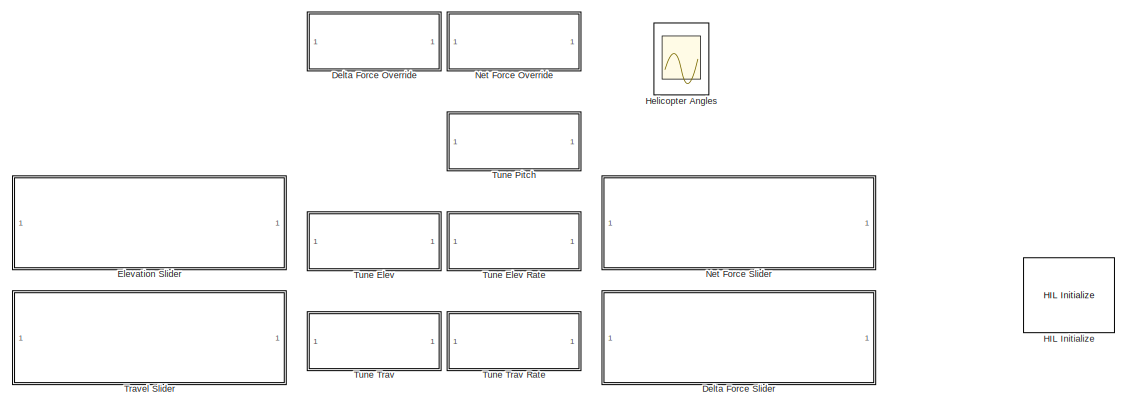
[diagram: root canvas - part 1/2, full width, top band]
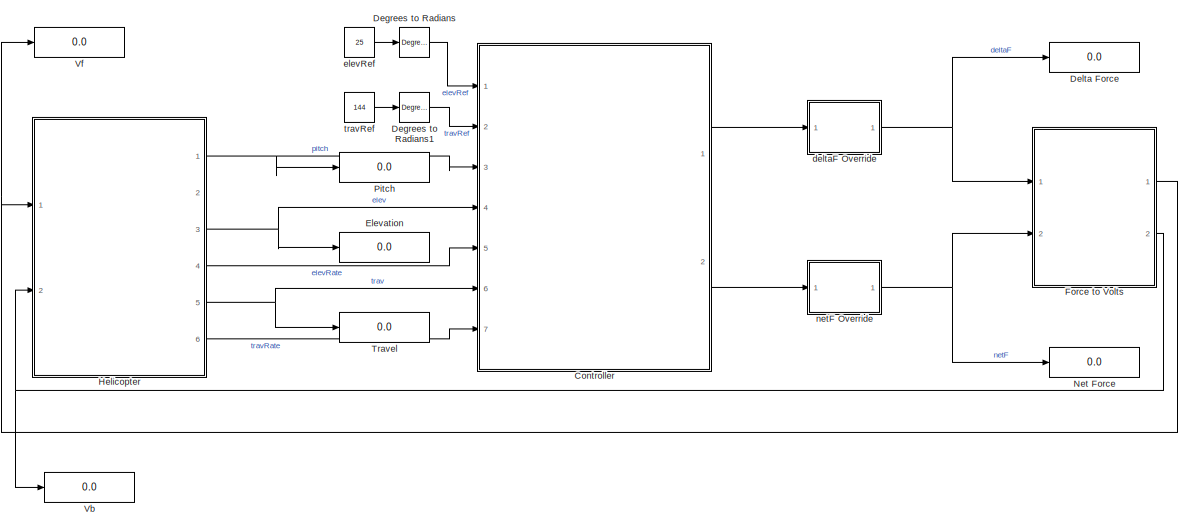
[diagram: root canvas - part 2/2, full width, bottom band]
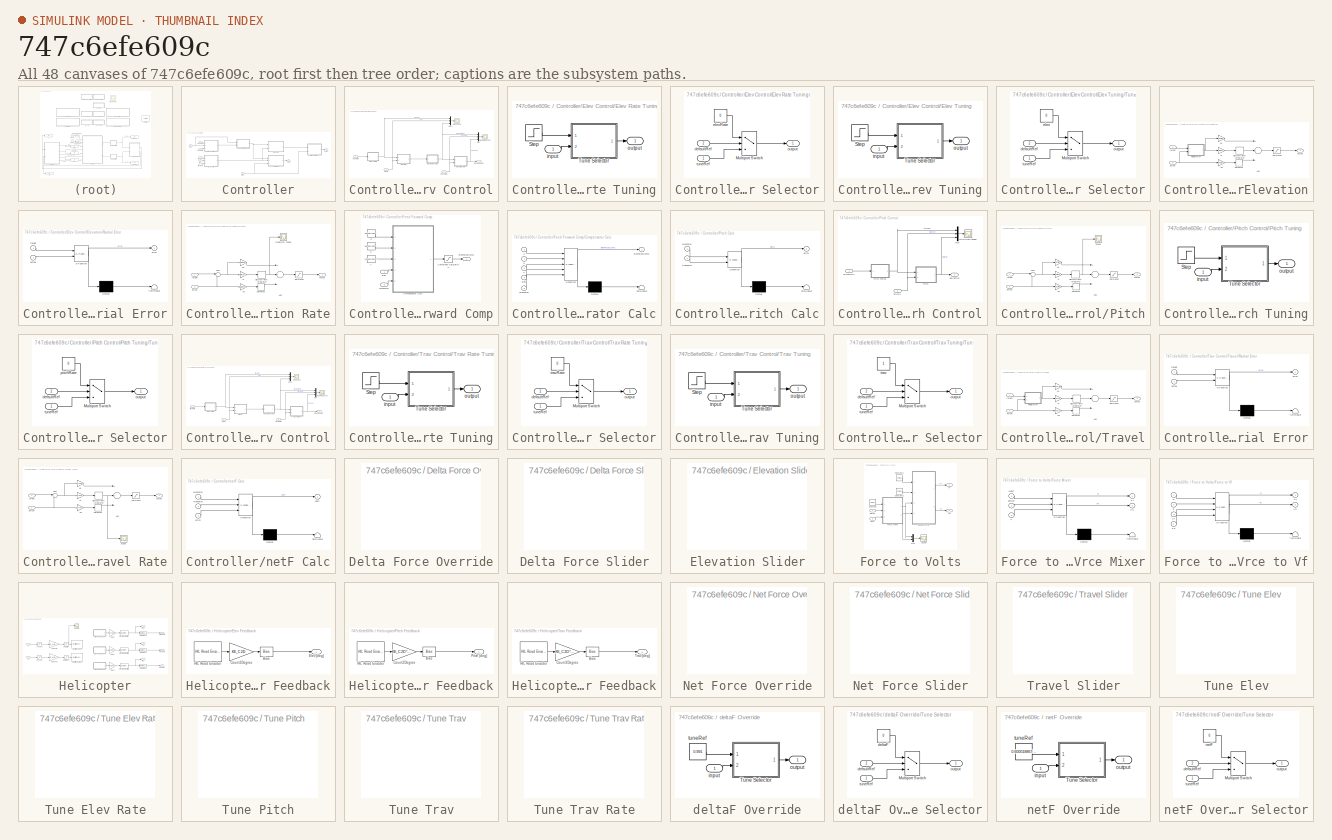
[diagram: thumbnail index - all 48 canvases of the model, root first then tree order]
MODEL slx_747c6efe609c
KIND model
CONFIG AbsTol = auto
CONFIG FixedStep = 0.01
CONFIG MaxStep = auto
CONFIG MinStep = auto
CONFIG RelTol = 1e-3
CONFIG SampleTimeConstraint = Unconstrained
CONFIG Solver = FixedStepAuto
CONFIG SolverMode = Auto
CONFIG SolverName = FixedStepAuto
CONFIG StartTime = 0.0
CONFIG StopTime = 40
BLOCK [SubSystem] Controller
  Ports = [7, 2]
  RequestExecContextInheritance = off
  Variant = off
BLOCK [SubSystem] Controller/Elev Control
  Ports = [3, 1]
  RequestExecContextInheritance = off
  Variant = off
BLOCK [Scope] Controller/Elev Control/Elev Rate Scope
  Ports = [1]
  ScopeSpecificationString = Simulink.scopes.TimeScopeBlockCfg('CurrentConfiguration', extmgr.ConfigurationSet(extmgr.Configuration('Core','General UI',true),extmgr.Configuration('Core','Source UI',true),extmgr.Configuration('Sources','WiredSimulink',true,'DataLoggingVariableName','ScopeData3'),extmgr.Configuration('Visuals','Time Domain',true,'SerializedDisplays',{struct('MinYLimReal','-1.04466','MaxYLimReal','2.3383','YLabe...<+1460ch>
BLOCK [SubSystem] Controller/Elev Control/Elev Rate Tuning
  Ports = [1, 1]
  RequestExecContextInheritance = off
  Variant = off
BLOCK [Step] Controller/Elev Control/Elev Rate Tuning/Step
  After = tuningElevRateRef
  SampleTime = 0
  Time = 2
BLOCK [SubSystem] Controller/Elev Control/Elev Rate Tuning/Tune Selector
  Ports = [2, 1]
  RequestExecContextInheritance = off
  Variant = off
BLOCK [MultiPortSwitch] Controller/Elev Control/Elev Rate Tuning/Tune Selector/Multiport Switch
  DataPortOrder = Zero-based contiguous
  InputSameDT = off
  Inputs = 2
  Ports = [3, 1]
  SaturateOnIntegerOverflow = off
BLOCK [Inport] Controller/Elev Control/Elev Rate Tuning/Tune Selector/defaultRef
  IconDisplay = Port number
  Port = 2
BLOCK [Constant] Controller/Elev Control/Elev Rate Tuning/Tune Selector/elevRate
  Value = 0
BLOCK [Outport] Controller/Elev Control/Elev Rate Tuning/Tune Selector/output 
  IconDisplay = Port number
BLOCK [Inport] Controller/Elev Control/Elev Rate Tuning/Tune Selector/tuneRef
  IconDisplay = Port number
BLOCK [Inport] Controller/Elev Control/Elev Rate Tuning/input
  IconDisplay = Port number
BLOCK [Outport] Controller/Elev Control/Elev Rate Tuning/output
  IconDisplay = Port number
BLOCK [Scope] Controller/Elev Control/Elev Scope
  Ports = [1]
  ScopeSpecificationString = Simulink.scopes.TimeScopeBlockCfg('CurrentConfiguration', extmgr.ConfigurationSet(extmgr.Configuration('Core','General UI',true),extmgr.Configuration('Core','Source UI',true),extmgr.Configuration('Sources','WiredSimulink',true,'DataLoggingVariableName','ScopeData4'),extmgr.Configuration('Visuals','Time Domain',true,'SerializedDisplays',{struct('MinYLimReal','-0.08852','MaxYLimReal','0.52628','YLab...<+1415ch>
BLOCK [SubSystem] Controller/Elev Control/Elev Tuning
  Ports = [1, 1]
  RequestExecContextInheritance = off
  Variant = off
BLOCK [Step] Controller/Elev Control/Elev Tuning/Step
  After = tuningElevRef
  SampleTime = 0
  Time = 2
BLOCK [SubSystem] Controller/Elev Control/Elev Tuning/Tune Selector
  Ports = [2, 1]
  RequestExecContextInheritance = off
  Variant = off
BLOCK [MultiPortSwitch] Controller/Elev Control/Elev Tuning/Tune Selector/Multiport Switch
  DataPortOrder = Zero-based contiguous
  InputSameDT = off
  Inputs = 2
  Ports = [3, 1]
  SaturateOnIntegerOverflow = off
BLOCK [Inport] Controller/Elev Control/Elev Tuning/Tune Selector/defaultRef
  IconDisplay = Port number
  Port = 2
BLOCK [Constant] Controller/Elev Control/Elev Tuning/Tune Selector/elev
  Value = 0
BLOCK [Outport] Controller/Elev Control/Elev Tuning/Tune Selector/output 
  IconDisplay = Port number
BLOCK [Inport] Controller/Elev Control/Elev Tuning/Tune Selector/tuneRef
  IconDisplay = Port number
BLOCK [Inport] Controller/Elev Control/Elev Tuning/input
  IconDisplay = Port number
BLOCK [Outport] Controller/Elev Control/Elev Tuning/output
  IconDisplay = Port number
BLOCK [SubSystem] Controller/Elev Control/Elevation
  Ports = [2, 1]
  RequestExecContextInheritance = off
  Variant = off
BLOCK [SubSystem] Controller/Elev Control/Elevation Rate
  Ports = [2, 1]
  RequestExecContextInheritance = off
  Variant = off
BLOCK [Sum] Controller/Elev Control/Elevation Rate/Add
  InputSameDT = off
  Inputs = ++-
  OutDataTypeStr = Inherit: Inherit via internal rule
  Ports = [3, 1]
  SaturateOnIntegerOverflow = off
BLOCK [Derivative] Controller/Elev Control/Elevation Rate/Derivative
BLOCK [DiscreteIntegrator] Controller/Elev Control/Elevation Rate/Discrete-Time Integrator
  ICPrevOutput = DiscIntNeverNeededParam
  ICPrevScaledInput = DiscIntNeverNeededParam
  InitialConditionSetting = State (most efficient)
  LimitOutput = on
  LowerSaturationLimit = minIntegralElevRate
  Ports = [1, 1]
  SampleTime = -1
  UpperSaturationLimit = maxIntegralElevRate
BLOCK [Scope] Controller/Elev Control/Elevation Rate/Integrator Scope
  Ports = [1]
  ScopeSpecificationString = Simulink.scopes.TimeScopeBlockCfg('CurrentConfiguration', extmgr.ConfigurationSet(extmgr.Configuration('Core','General UI',true),extmgr.Configuration('Core','Source UI',true),extmgr.Configuration('Sources','WiredSimulink',true,'DataLoggingVariableName','ScopeData5'),extmgr.Configuration('Visuals','Time Domain',true,'SerializedDisplays',{struct('MinYLimReal','-0.47751','MaxYLimReal','0.92076','YLab...<+1441ch>
BLOCK [Gain] Controller/Elev Control/Elevation Rate/Kd
  Gain = KdElevRate
  OutDataTypeStr = Inherit: Inherit via internal rule
  ParamDataTypeStr = Inherit: Inherit via internal rule
  SaturateOnIntegerOverflow = off
BLOCK [Gain] Controller/Elev Control/Elevation Rate/Ki
  Gain = KiElevRate
  OutDataTypeStr = Inherit: Inherit via internal rule
  ParamDataTypeStr = Inherit: Inherit via internal rule
  SaturateOnIntegerOverflow = off
BLOCK [Gain] Controller/Elev Control/Elevation Rate/Kp
  Gain = KpElevRate
  OutDataTypeStr = Inherit: Inherit via internal rule
  ParamDataTypeStr = Inherit: Inherit via internal rule
  SaturateOnIntegerOverflow = off
BLOCK [Saturate] Controller/Elev Control/Elevation Rate/Saturation
  InputPortMap = u0
  LowerLimit = minElevForce
  Ports = [1, 1]
  UpperLimit = maxElevForce
BLOCK [Sum] Controller/Elev Control/Elevation Rate/Sum
  IconShape = round
  InputSameDT = off
  Inputs = |+-
  OutDataTypeStr = Inherit: Inherit via internal rule
  Ports = [2, 1]
  SaturateOnIntegerOverflow = off
BLOCK [Inport] Controller/Elev Control/Elevation Rate/actual
  IconDisplay = Port number
  Port = 2
BLOCK [Outport] Controller/Elev Control/Elevation Rate/output
  IconDisplay = Port number
BLOCK [Inport] Controller/Elev Control/Elevation Rate/target
  IconDisplay = Port number
BLOCK [Sum] Controller/Elev Control/Elevation/Add
  InputSameDT = off
  Inputs = ++-
  OutDataTypeStr = Inherit: Inherit via internal rule
  Ports = [3, 1]
  SaturateOnIntegerOverflow = off
BLOCK [Derivative] Controller/Elev Control/Elevation/Derivative
BLOCK [DiscreteIntegrator] Controller/Elev Control/Elevation/Discrete-Time Integrator
  ICPrevOutput = DiscIntNeverNeededParam
  ICPrevScaledInput = DiscIntNeverNeededParam
  InitialConditionSetting = State (most efficient)
  LimitOutput = on
  LowerSaturationLimit = minIntegralElev
  Ports = [1, 1]
  SampleTime = -1
  UpperSaturationLimit = maxIntegralElev
BLOCK [Gain] Controller/Elev Control/Elevation/Kd
  Gain = KdElev
  OutDataTypeStr = Inherit: Inherit via internal rule
  ParamDataTypeStr = Inherit: Inherit via internal rule
  SaturateOnIntegerOverflow = off
BLOCK [Gain] Controller/Elev Control/Elevation/Ki
  Gain = KiElev
  OutDataTypeStr = Inherit: Inherit via internal rule
  ParamDataTypeStr = Inherit: Inherit via internal rule
  SaturateOnIntegerOverflow = off
BLOCK [Gain] Controller/Elev Control/Elevation/Kp
  Gain = KpElev
  OutDataTypeStr = Inherit: Inherit via internal rule
  ParamDataTypeStr = Inherit: Inherit via internal rule
  SaturateOnIntegerOverflow = off
BLOCK [SubSystem] Controller/Elev Control/Elevation/Radial Error
  ErrorFcn = Stateflow.Translate.translate
  PermitHierarchicalResolution = ExplicitOnly
  Ports = [2, 1]
  RequestExecContextInheritance = off
  SFBlockType = MATLAB Function
  TreatAsAtomicUnit = on
  Variant = off
BLOCK [Demux] Controller/Elev Control/Elevation/Radial Error/ Demux 
  Outputs = 1
  Ports = [1, 1]
BLOCK [S-Function] Controller/Elev Control/Elevation/Radial Error/ SFunction 
  EnableBusSupport = on
  FunctionName = sf_sfun
  PortCounts = [2 2]
  Ports = [2, 2]
  SFunctionDeploymentMode = off
  Tag = Stateflow S-Function controller 4
BLOCK [Terminator] Controller/Elev Control/Elevation/Radial Error/ Terminator 
BLOCK [Inport] Controller/Elev Control/Elevation/Radial Error/actual
  IconDisplay = Port number
  Port = 2
BLOCK [Outport] Controller/Elev Control/Elevation/Radial Error/error
  IconDisplay = Port number
BLOCK [Inport] Controller/Elev Control/Elevation/Radial Error/target
  IconDisplay = Port number
BLOCK [Saturate] Controller/Elev Control/Elevation/Saturation
  InputPortMap = u0
  LowerLimit = minElevRate
  Ports = [1, 1]
  UpperLimit = maxElevRate
BLOCK [Inport] Controller/Elev Control/Elevation/actual
  IconDisplay = Port number
  Port = 2
BLOCK [Outport] Controller/Elev Control/Elevation/output
  IconDisplay = Port number
BLOCK [Inport] Controller/Elev Control/Elevation/target
  IconDisplay = Port number
BLOCK [Mux] Controller/Elev Control/Mux
  DisplayOption = bar
  Inputs = 3
  Ports = [3, 1]
BLOCK [Mux] Controller/Elev Control/Mux1
  DisplayOption = bar
  Inputs = 3
  Ports = [3, 1]
BLOCK [Outport] Controller/Elev Control/elevForceOut
  IconDisplay = Port number
BLOCK [Inport] Controller/Elev Control/elevIn
  IconDisplay = Port number
  Port = 2
BLOCK [Inport] Controller/Elev Control/elevRateIn
  IconDisplay = Port number
  Port = 3
BLOCK [Inport] Controller/Elev Control/elevRefIn
  IconDisplay = Port number
BLOCK [SubSystem] Controller/Feed Forward Comp
  Ports = [2, 1]
  RequestExecContextInheritance = off
  Variant = off
BLOCK [Saturate] Controller/Feed Forward Comp/Combined Saturation
  InputPortMap = u0
  LowerLimit = minElevCombForce
  Ports = [1, 1]
  UpperLimit = maxElevCombForce
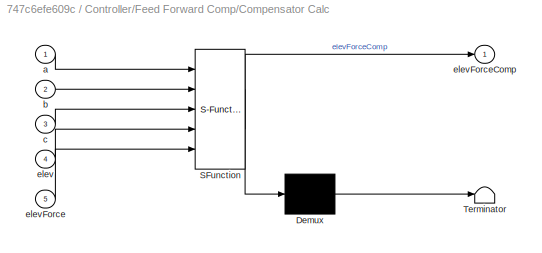
BLOCK [SubSystem] Controller/Feed Forward Comp/Compensator Calc
  ErrorFcn = Stateflow.Translate.translate
  PermitHierarchicalResolution = ExplicitOnly
  Ports = [5, 1]
  RequestExecContextInheritance = off
  SFBlockType = MATLAB Function
  TreatAsAtomicUnit = on
  Variant = off
BLOCK [Demux] Controller/Feed Forward Comp/Compensator Calc/ Demux 
  Outputs = 1
  Ports = [1, 1]
BLOCK [S-Function] Controller/Feed Forward Comp/Compensator Calc/ SFunction 
  EnableBusSupport = on
  FunctionName = sf_sfun
  PortCounts = [5 2]
  Ports = [5, 2]
  SFunctionDeploymentMode = off
  Tag = Stateflow S-Function controller 9
BLOCK [Terminator] Controller/Feed Forward Comp/Compensator Calc/ Terminator 
BLOCK [Inport] Controller/Feed Forward Comp/Compensator Calc/a
  IconDisplay = Port number
BLOCK [Inport] Controller/Feed Forward Comp/Compensator Calc/b
  IconDisplay = Port number
  Port = 2
BLOCK [Inport] Controller/Feed Forward Comp/Compensator Calc/c
  IconDisplay = Port number
  Port = 3
BLOCK [Inport] Controller/Feed Forward Comp/Compensator Calc/elev
  IconDisplay = Port number
  Port = 4
BLOCK [Inport] Controller/Feed Forward Comp/Compensator Calc/elevForce
  IconDisplay = Port number
  Port = 5
BLOCK [Outport] Controller/Feed Forward Comp/Compensator Calc/elevForceComp
  IconDisplay = Port number
BLOCK [Constant] Controller/Feed Forward Comp/a
  Value = aGravityCompensation
BLOCK [Constant] Controller/Feed Forward Comp/b
  Value = bGravityCompensation
BLOCK [Constant] Controller/Feed Forward Comp/c
  Value = cGravityCompensation
BLOCK [Inport] Controller/Feed Forward Comp/elev
  IconDisplay = Port number
BLOCK [Inport] Controller/Feed Forward Comp/elevForce
  IconDisplay = Port number
  Port = 2
BLOCK [Outport] Controller/Feed Forward Comp/elevForceComp
  IconDisplay = Port number
BLOCK [SubSystem] Controller/Pitch Calc
  ErrorFcn = Stateflow.Translate.translate
  PermitHierarchicalResolution = ExplicitOnly
  Ports = [2, 1]
  RequestExecContextInheritance = off
  SFBlockType = MATLAB Function
  TreatAsAtomicUnit = on
  Variant = off
BLOCK [Demux] Controller/Pitch Calc/ Demux 
  Outputs = 1
  Ports = [1, 1]
BLOCK [S-Function] Controller/Pitch Calc/ SFunction 
  EnableBusSupport = on
  FunctionName = sf_sfun
  PortCounts = [2 2]
  Ports = [2, 2]
  SFunctionDeploymentMode = off
  Tag = Stateflow S-Function controller 6
BLOCK [Terminator] Controller/Pitch Calc/ Terminator 
BLOCK [Inport] Controller/Pitch Calc/elevForce
  IconDisplay = Port number
BLOCK [Outport] Controller/Pitch Calc/pitch
  IconDisplay = Port number
BLOCK [Inport] Controller/Pitch Calc/travForce
  IconDisplay = Port number
  Port = 2
BLOCK [SubSystem] Controller/Pitch Control
  Ports = [2, 1]
  RequestExecContextInheritance = off
  Variant = off
BLOCK [Mux] Controller/Pitch Control/Mux
  DisplayOption = bar
  Inputs = 3
  Ports = [3, 1]
BLOCK [SubSystem] Controller/Pitch Control/Pitch
  Ports = [2, 1]
  RequestExecContextInheritance = off
  Variant = off
BLOCK [Scope] Controller/Pitch Control/Pitch Rate Scope
  Ports = [1]
  ScopeSpecificationString = Simulink.scopes.TimeScopeBlockCfg('CurrentConfiguration', extmgr.ConfigurationSet(extmgr.Configuration('Core','General UI',true),extmgr.Configuration('Core','Source UI',true),extmgr.Configuration('Sources','WiredSimulink',true,'DataLoggingVariableName','ScopeData1'),extmgr.Configuration('Visuals','Time Domain',true,'SerializedDisplays',{struct('MinYLimReal','-1.309','MaxYLimReal','1.309','YLabelRe...<+1407ch>
BLOCK [SubSystem] Controller/Pitch Control/Pitch Tuning
  Ports = [1, 1]
  RequestExecContextInheritance = off
  Variant = off
BLOCK [Step] Controller/Pitch Control/Pitch Tuning/Step
  After = tuningPitchRef
  SampleTime = 0
  Time = 2
BLOCK [SubSystem] Controller/Pitch Control/Pitch Tuning/Tune Selector
  Ports = [2, 1]
  RequestExecContextInheritance = off
  Variant = off
BLOCK [MultiPortSwitch] Controller/Pitch Control/Pitch Tuning/Tune Selector/Multiport Switch
  DataPortOrder = Zero-based contiguous
  InputSameDT = off
  Inputs = 2
  Ports = [3, 1]
  SaturateOnIntegerOverflow = off
BLOCK [Inport] Controller/Pitch Control/Pitch Tuning/Tune Selector/defaultRef
  IconDisplay = Port number
  Port = 2
BLOCK [Outport] Controller/Pitch Control/Pitch Tuning/Tune Selector/output 
  IconDisplay = Port number
BLOCK [Constant] Controller/Pitch Control/Pitch Tuning/Tune Selector/pitchRate
  Value = 0
BLOCK [Inport] Controller/Pitch Control/Pitch Tuning/Tune Selector/tuneRef
  IconDisplay = Port number
BLOCK [Inport] Controller/Pitch Control/Pitch Tuning/input
  IconDisplay = Port number
BLOCK [Outport] Controller/Pitch Control/Pitch Tuning/output
  IconDisplay = Port number
BLOCK [Sum] Controller/Pitch Control/Pitch/Add
  InputSameDT = off
  Inputs = ++-
  OutDataTypeStr = Inherit: Inherit via internal rule
  Ports = [3, 1]
  SaturateOnIntegerOverflow = off
BLOCK [Derivative] Controller/Pitch Control/Pitch/Derivative
BLOCK [DiscreteIntegrator] Controller/Pitch Control/Pitch/Discrete-Time Integrator
  ICPrevOutput = DiscIntNeverNeededParam
  ICPrevScaledInput = DiscIntNeverNeededParam
  InitialConditionSetting = State (most efficient)
  LimitOutput = on
  LowerSaturationLimit = minIntegralPitch
  Ports = [1, 1]
  SampleTime = -1
  UpperSaturationLimit = maxIntegralPitch
BLOCK [Gain] Controller/Pitch Control/Pitch/Kd
  Gain = KdPitch
  OutDataTypeStr = Inherit: Inherit via internal rule
  ParamDataTypeStr = Inherit: Inherit via internal rule
  SaturateOnIntegerOverflow = off
BLOCK [Gain] Controller/Pitch Control/Pitch/Ki
  Gain = KiPitch
  OutDataTypeStr = Inherit: Inherit via internal rule
  ParamDataTypeStr = Inherit: Inherit via internal rule
  SaturateOnIntegerOverflow = off
BLOCK [Gain] Controller/Pitch Control/Pitch/Kp
  Gain = KpPitch
  OutDataTypeStr = Inherit: Inherit via internal rule
  ParamDataTypeStr = Inherit: Inherit via internal rule
  SaturateOnIntegerOverflow = off
BLOCK [Saturate] Controller/Pitch Control/Pitch/Saturation
  InputPortMap = u0
  LowerLimit = minDeltaForce
  Ports = [1, 1]
  UpperLimit = maxDeltaForce
BLOCK [Scope] Controller/Pitch Control/Pitch/Scope
  Ports = [1]
  ScopeSpecificationString = Simulink.scopes.TimeScopeBlockCfg('CurrentConfiguration', extmgr.ConfigurationSet(extmgr.Configuration('Core','General UI',true),extmgr.Configuration('Core','Source UI',true),extmgr.Configuration('Sources','WiredSimulink',true,'DataLoggingVariableName','ScopeData2'),extmgr.Configuration('Visuals','Time Domain',true,'SerializedDisplays',{struct('MinYLimReal','-0.05916','MaxYLimReal','0.00667','YLab...<+1410ch>
BLOCK [Sum] Controller/Pitch Control/Pitch/Sum
  IconShape = round
  InputSameDT = off
  Inputs = |+-
  OutDataTypeStr = Inherit: Inherit via internal rule
  Ports = [2, 1]
  SaturateOnIntegerOverflow = off
BLOCK [Inport] Controller/Pitch Control/Pitch/actual
  IconDisplay = Port number
  Port = 2
BLOCK [Outport] Controller/Pitch Control/Pitch/output
  IconDisplay = Port number
BLOCK [Inport] Controller/Pitch Control/Pitch/target
  IconDisplay = Port number
BLOCK [Outport] Controller/Pitch Control/deltaFOut
  IconDisplay = Port number
BLOCK [Inport] Controller/Pitch Control/pitchIn
  IconDisplay = Port number
  Port = 2
BLOCK [Inport] Controller/Pitch Control/pitchRefIn
  IconDisplay = Port number
BLOCK [SubSystem] Controller/Trav Control
  Ports = [3, 1]
  RequestExecContextInheritance = off
  Variant = off
BLOCK [Mux] Controller/Trav Control/Mux
  DisplayOption = bar
  Inputs = 3
  Ports = [3, 1]
BLOCK [Mux] Controller/Trav Control/Mux1
  DisplayOption = bar
  Inputs = 3
  Ports = [3, 1]
BLOCK [Scope] Controller/Trav Control/Trav Rate Scope
  Ports = [1]
  ScopeSpecificationString = Simulink.scopes.TimeScopeBlockCfg('CurrentConfiguration', extmgr.ConfigurationSet(extmgr.Configuration('Core','General UI',true),extmgr.Configuration('Core','Source UI',true),extmgr.Configuration('Sources','WiredSimulink',true,'DataLoggingVariableName','ScopeData1'),extmgr.Configuration('Visuals','Time Domain',true,'SerializedDisplays',{struct('MinYLimReal','-0.48054','MaxYLimReal','0.77787','YLab...<+1464ch>
BLOCK [SubSystem] Controller/Trav Control/Trav Rate Tuning
  Ports = [1, 1]
  RequestExecContextInheritance = off
  Variant = off
BLOCK [Step] Controller/Trav Control/Trav Rate Tuning/Step
  After = tuningTravRateRef
  SampleTime = 0
  Time = 10
BLOCK [SubSystem] Controller/Trav Control/Trav Rate Tuning/Tune Selector
  Ports = [2, 1]
  RequestExecContextInheritance = off
  Variant = off
BLOCK [MultiPortSwitch] Controller/Trav Control/Trav Rate Tuning/Tune Selector/Multiport Switch
  DataPortOrder = Zero-based contiguous
  InputSameDT = off
  Inputs = 2
  Ports = [3, 1]
  SaturateOnIntegerOverflow = off
BLOCK [Inport] Controller/Trav Control/Trav Rate Tuning/Tune Selector/defaultRef
  IconDisplay = Port number
  Port = 2
BLOCK [Outport] Controller/Trav Control/Trav Rate Tuning/Tune Selector/output 
  IconDisplay = Port number
BLOCK [Constant] Controller/Trav Control/Trav Rate Tuning/Tune Selector/travRate
  Value = 0
BLOCK [Inport] Controller/Trav Control/Trav Rate Tuning/Tune Selector/tuneRef
  IconDisplay = Port number
BLOCK [Inport] Controller/Trav Control/Trav Rate Tuning/input
  IconDisplay = Port number
BLOCK [Outport] Controller/Trav Control/Trav Rate Tuning/output
  IconDisplay = Port number
BLOCK [Scope] Controller/Trav Control/Trav Scope
  Ports = [1]
  ScopeSpecificationString = Simulink.scopes.TimeScopeBlockCfg('CurrentConfiguration', extmgr.ConfigurationSet(extmgr.Configuration('Core','General UI',true),extmgr.Configuration('Core','Source UI',true),extmgr.Configuration('Sources','WiredSimulink',true,'DataLoggingVariableName','ScopeData2'),extmgr.Configuration('Visuals','Time Domain',true,'SerializedDisplays',{struct('MinYLimReal','-0.82473','MaxYLimReal','1.64056','YLab...<+1458ch>
BLOCK [SubSystem] Controller/Trav Control/Trav Tuning
  Ports = [1, 1]
  RequestExecContextInheritance = off
  Variant = off
BLOCK [Step] Controller/Trav Control/Trav Tuning/Step
  After = tuningTravRef
  SampleTime = 0
  Time = 10
BLOCK [SubSystem] Controller/Trav Control/Trav Tuning/Tune Selector
  Ports = [2, 1]
  RequestExecContextInheritance = off
  Variant = off
BLOCK [MultiPortSwitch] Controller/Trav Control/Trav Tuning/Tune Selector/Multiport Switch
  DataPortOrder = Zero-based contiguous
  InputSameDT = off
  Inputs = 2
  Ports = [3, 1]
  SaturateOnIntegerOverflow = off
BLOCK [Inport] Controller/Trav Control/Trav Tuning/Tune Selector/defaultRef
  IconDisplay = Port number
  Port = 2
BLOCK [Outport] Controller/Trav Control/Trav Tuning/Tune Selector/output 
  IconDisplay = Port number
BLOCK [Constant] Controller/Trav Control/Trav Tuning/Tune Selector/trav
BLOCK [Inport] Controller/Trav Control/Trav Tuning/Tune Selector/tuneRef
  IconDisplay = Port number
BLOCK [Inport] Controller/Trav Control/Trav Tuning/input
  IconDisplay = Port number
BLOCK [Outport] Controller/Trav Control/Trav Tuning/output
  IconDisplay = Port number
BLOCK [SubSystem] Controller/Trav Control/Travel
  Ports = [2, 1]
  RequestExecContextInheritance = off
  Variant = off
BLOCK [SubSystem] Controller/Trav Control/Travel Rate
  Ports = [2, 1]
  RequestExecContextInheritance = off
  Variant = off
BLOCK [Sum] Controller/Trav Control/Travel Rate/Add
  InputSameDT = off
  Inputs = ++-
  OutDataTypeStr = Inherit: Inherit via internal rule
  Ports = [3, 1]
  SaturateOnIntegerOverflow = off
BLOCK [Derivative] Controller/Trav Control/Travel Rate/Derivative
BLOCK [DiscreteIntegrator] Controller/Trav Control/Travel Rate/Discrete-Time Integrator
  ICPrevOutput = DiscIntNeverNeededParam
  ICPrevScaledInput = DiscIntNeverNeededParam
  InitialConditionSetting = State (most efficient)
  LimitOutput = on
  LowerSaturationLimit = minIntegralTravRate
  Ports = [1, 1]
  SampleTime = -1
  UpperSaturationLimit = maxIntegralTravRate
BLOCK [Gain] Controller/Trav Control/Travel Rate/Kd
  Gain = KdTravRate
  OutDataTypeStr = Inherit: Inherit via internal rule
  ParamDataTypeStr = Inherit: Inherit via internal rule
  SaturateOnIntegerOverflow = off
BLOCK [Gain] Controller/Trav Control/Travel Rate/Ki
  Gain = KiTravRate
  OutDataTypeStr = Inherit: Inherit via internal rule
  ParamDataTypeStr = Inherit: Inherit via internal rule
  SaturateOnIntegerOverflow = off
BLOCK [Gain] Controller/Trav Control/Travel Rate/Kp
  Gain = KpTravRate
  OutDataTypeStr = Inherit: Inherit via internal rule
  ParamDataTypeStr = Inherit: Inherit via internal rule
  SaturateOnIntegerOverflow = off
BLOCK [Saturate] Controller/Trav Control/Travel Rate/Saturation
  InputPortMap = u0
  LowerLimit = minTravForce
  Ports = [1, 1]
  UpperLimit = maxTravForce
BLOCK [Scope] Controller/Trav Control/Travel Rate/Scope
  Ports = [1]
  ScopeSpecificationString = Simulink.scopes.TimeScopeBlockCfg('CurrentConfiguration', extmgr.ConfigurationSet(extmgr.Configuration('Core','General UI',true),extmgr.Configuration('Core','Source UI',true),extmgr.Configuration('Sources','WiredSimulink',true,'DataLoggingVariableName','ScopeData1'),extmgr.Configuration('Visuals','Time Domain',true,'SerializedDisplays',{struct('MinYLimReal','-0.00462','MaxYLimReal','0.00066','YLab...<+1412ch>
BLOCK [Sum] Controller/Trav Control/Travel Rate/Sum
  IconShape = round
  InputSameDT = off
  Inputs = |+-
  OutDataTypeStr = Inherit: Inherit via internal rule
  Ports = [2, 1]
  SaturateOnIntegerOverflow = off
BLOCK [Inport] Controller/Trav Control/Travel Rate/actual
  IconDisplay = Port number
  Port = 2
BLOCK [Outport] Controller/Trav Control/Travel Rate/output
  IconDisplay = Port number
BLOCK [Inport] Controller/Trav Control/Travel Rate/target
  IconDisplay = Port number
BLOCK [Sum] Controller/Trav Control/Travel/Add
  InputSameDT = off
  Inputs = ++-
  OutDataTypeStr = Inherit: Inherit via internal rule
  Ports = [3, 1]
  SaturateOnIntegerOverflow = off
BLOCK [Derivative] Controller/Trav Control/Travel/Derivative
BLOCK [DiscreteIntegrator] Controller/Trav Control/Travel/Discrete-Time Integrator
  ICPrevOutput = DiscIntNeverNeededParam
  ICPrevScaledInput = DiscIntNeverNeededParam
  InitialConditionSetting = State (most efficient)
  LimitOutput = on
  LowerSaturationLimit = minIntegralTrav
  Ports = [1, 1]
  SampleTime = -1
  UpperSaturationLimit = maxIntegralTrav
BLOCK [Gain] Controller/Trav Control/Travel/Kd
  Gain = KdTrav
  OutDataTypeStr = Inherit: Inherit via internal rule
  ParamDataTypeStr = Inherit: Inherit via internal rule
  SaturateOnIntegerOverflow = off
BLOCK [Gain] Controller/Trav Control/Travel/Ki
  Gain = KiTrav
  OutDataTypeStr = Inherit: Inherit via internal rule
  ParamDataTypeStr = Inherit: Inherit via internal rule
  SaturateOnIntegerOverflow = off
BLOCK [Gain] Controller/Trav Control/Travel/Kp
  Gain = KpTrav
  OutDataTypeStr = Inherit: Inherit via internal rule
  ParamDataTypeStr = Inherit: Inherit via internal rule
  SaturateOnIntegerOverflow = off
BLOCK [SubSystem] Controller/Trav Control/Travel/Radial Error
  ErrorFcn = Stateflow.Translate.translate
  PermitHierarchicalResolution = ExplicitOnly
  Ports = [2, 1]
  RequestExecContextInheritance = off
  SFBlockType = MATLAB Function
  TreatAsAtomicUnit = on
  Variant = off
BLOCK [Demux] Controller/Trav Control/Travel/Radial Error/ Demux 
  Outputs = 1
  Ports = [1, 1]
BLOCK [S-Function] Controller/Trav Control/Travel/Radial Error/ SFunction 
  EnableBusSupport = on
  FunctionName = sf_sfun
  PortCounts = [2 2]
  Ports = [2, 2]
  SFunctionDeploymentMode = off
  Tag = Stateflow S-Function controller 7
BLOCK [Terminator] Controller/Trav Control/Travel/Radial Error/ Terminator 
BLOCK [Inport] Controller/Trav Control/Travel/Radial Error/actual
  IconDisplay = Port number
  Port = 2
BLOCK [Outport] Controller/Trav Control/Travel/Radial Error/error
  IconDisplay = Port number
BLOCK [Inport] Controller/Trav Control/Travel/Radial Error/target
  IconDisplay = Port number
BLOCK [Saturate] Controller/Trav Control/Travel/Saturation
  InputPortMap = u0
  LowerLimit = minTravRate
  Ports = [1, 1]
  UpperLimit = maxTravRate
BLOCK [Inport] Controller/Trav Control/Travel/actual
  IconDisplay = Port number
  Port = 2
BLOCK [Outport] Controller/Trav Control/Travel/output
  IconDisplay = Port number
BLOCK [Inport] Controller/Trav Control/Travel/target
  IconDisplay = Port number
BLOCK [Outport] Controller/Trav Control/travForceOut
  IconDisplay = Port number
BLOCK [Inport] Controller/Trav Control/travIn
  IconDisplay = Port number
  Port = 2
BLOCK [Inport] Controller/Trav Control/travRateIn
  IconDisplay = Port number
  Port = 3
BLOCK [Inport] Controller/Trav Control/travRefIn
  IconDisplay = Port number
BLOCK [Outport] Controller/deltaF
  IconDisplay = Port number
BLOCK [Inport] Controller/elev
  IconDisplay = Port number
  Port = 4
BLOCK [Inport] Controller/elevRate
  IconDisplay = Port number
  Port = 5
BLOCK [Inport] Controller/elevRef
  IconDisplay = Port number
BLOCK [Outport] Controller/netF
  IconDisplay = Port number
  Port = 2
BLOCK [SubSystem] Controller/netF Calc
  ErrorFcn = Stateflow.Translate.translate
  PermitHierarchicalResolution = ExplicitOnly
  Ports = [3, 1]
  RequestExecContextInheritance = off
  SFBlockType = MATLAB Function
  TreatAsAtomicUnit = on
  Variant = off
BLOCK [Demux] Controller/netF Calc/ Demux 
  Outputs = 1
  Ports = [1, 1]
BLOCK [S-Function] Controller/netF Calc/ SFunction 
  EnableBusSupport = on
  FunctionName = sf_sfun
  PortCounts = [3 2]
  Ports = [3, 2]
  SFunctionDeploymentMode = off
  Tag = Stateflow S-Function controller 5
BLOCK [Terminator] Controller/netF Calc/ Terminator 
BLOCK [Inport] Controller/netF Calc/elevForce
  IconDisplay = Port number
BLOCK [Outport] Controller/netF Calc/netF
  IconDisplay = Port number
BLOCK [Inport] Controller/netF Calc/pitch
  IconDisplay = Port number
  Port = 3
BLOCK [Inport] Controller/netF Calc/travForce
  IconDisplay = Port number
  Port = 2
BLOCK [Inport] Controller/pitch
  IconDisplay = Port number
  Port = 3
BLOCK [Inport] Controller/trav
  IconDisplay = Port number
  Port = 6
BLOCK [Inport] Controller/travRate
  IconDisplay = Port number
  Port = 7
BLOCK [Inport] Controller/travRef
  IconDisplay = Port number
  Port = 2
BLOCK [Reference] Degrees to Radians  REF=simulink_extras/Transformations/Degrees to
Radians
  Ports = [1, 1]
  SourceBlock = simulink_extras/Transformations/Degrees to\nRadians
  SourceType = DegreesToRadians
BLOCK [Reference] Degrees to Radians1  REF=simulink_extras/Transformations/Degrees to
Radians
  Ports = [1, 1]
  SourceBlock = simulink_extras/Transformations/Degrees to\nRadians
  SourceType = DegreesToRadians
BLOCK [Display] Delta Force
  Decimation = 2
  Ports = [1]
BLOCK [SubSystem] Delta Force Override
  DialogController = hmiCreateDDGDialog
  IsWebBlock = on
  MaskHideContents = on
  Ports = []
  RequestExecContextInheritance = off
  Variant = off
BLOCK [SubSystem] Delta Force Slider
  DialogController = hmiCreateDDGDialog
  IsWebBlock = on
  MaskHideContents = on
  Ports = []
  RequestExecContextInheritance = off
  Variant = off
BLOCK [Display] Elevation
  Decimation = 2
  Ports = [1]
BLOCK [SubSystem] Elevation Slider
  DialogController = hmiCreateDDGDialog
  IsWebBlock = on
  MaskHideContents = on
  Ports = []
  RequestExecContextInheritance = off
  Variant = off
BLOCK [SubSystem] Force to Volts
  Ports = [2, 2]
  RequestExecContextInheritance = off
  Variant = off
BLOCK [Constant] Force to Volts/Constant
  Value = maxF
BLOCK [Constant] Force to Volts/Constant1
  Value = aThrust
BLOCK [Constant] Force to Volts/Constant2
  Value = bThrust
BLOCK [SubSystem] Force to Volts/Force Mixer
  ErrorFcn = Stateflow.Translate.translate
  PermitHierarchicalResolution = ExplicitOnly
  Ports = [3, 2]
  RequestExecContextInheritance = off
  SFBlockType = MATLAB Function
  TreatAsAtomicUnit = on
  Variant = off
BLOCK [Demux] Force to Volts/Force Mixer/ Demux 
  Outputs = 1
  Ports = [1, 1]
BLOCK [S-Function] Force to Volts/Force Mixer/ SFunction 
  EnableBusSupport = on
  FunctionName = sf_sfun
  PortCounts = [3 3]
  Ports = [3, 3]
  SFunctionDeploymentMode = off
  Tag = Stateflow S-Function controller 1
BLOCK [Terminator] Force to Volts/Force Mixer/ Terminator 
BLOCK [Inport] Force to Volts/Force Mixer/F
  IconDisplay = Port number
  Port = 3
BLOCK [Outport] Force to Volts/Force Mixer/Fb
  IconDisplay = Port number
  Port = 2
BLOCK [Outport] Force to Volts/Force Mixer/Ff
  IconDisplay = Port number
BLOCK [Inport] Force to Volts/Force Mixer/deltaF
  IconDisplay = Port number
  Port = 2
BLOCK [Inport] Force to Volts/Force Mixer/maxF
  IconDisplay = Port number
BLOCK [SubSystem] Force to Volts/Force to Vf
  ErrorFcn = Stateflow.Translate.translate
  PermitHierarchicalResolution = ExplicitOnly
  Ports = [4, 2]
  RequestExecContextInheritance = off
  SFBlockType = MATLAB Function
  TreatAsAtomicUnit = on
  Variant = off
BLOCK [Demux] Force to Volts/Force to Vf/ Demux 
  Outputs = 1
  Ports = [1, 1]
BLOCK [S-Function] Force to Volts/Force to Vf/ SFunction 
  EnableBusSupport = on
  FunctionName = sf_sfun
  PortCounts = [4 3]
  Ports = [4, 3]
  SFunctionDeploymentMode = off
  Tag = Stateflow S-Function controller 2
BLOCK [Terminator] Force to Volts/Force to Vf/ Terminator 
BLOCK [Inport] Force to Volts/Force to Vf/Fb
  IconDisplay = Port number
  Port = 4
BLOCK [Inport] Force to Volts/Force to Vf/Ff
  IconDisplay = Port number
  Port = 3
BLOCK [Outport] Force to Volts/Force to Vf/Vb
  IconDisplay = Port number
  Port = 2
BLOCK [Outport] Force to Volts/Force to Vf/Vf
  IconDisplay = Port number
BLOCK [Inport] Force to Volts/Force to Vf/a
  IconDisplay = Port number
BLOCK [Inport] Force to Volts/Force to Vf/b
  IconDisplay = Port number
  Port = 2
BLOCK [Mux] Force to Volts/Mux
  DisplayOption = bar
  Inputs = 2
  Ports = [2, 1]
BLOCK [Scope] Force to Volts/Scope
  Ports = [1]
  ScopeSpecificationString = Simulink.scopes.TimeScopeBlockCfg('CurrentConfiguration', extmgr.ConfigurationSet(extmgr.Configuration('Core','General UI',true),extmgr.Configuration('Core','Source UI',true),extmgr.Configuration('Sources','WiredSimulink',true,'DataLoggingVariableName','ScopeData1'),extmgr.Configuration('Visuals','Time Domain',true,'SerializedDisplays',{struct('MinYLimReal','-0.12387','MaxYLimReal','1.11488','YLab...<+1417ch>
BLOCK [Outport] Force to Volts/Vb
  IconDisplay = Port number
  Port = 2
BLOCK [Outport] Force to Volts/Vf
  IconDisplay = Port number
BLOCK [Inport] Force to Volts/deltaF
  IconDisplay = Port number
BLOCK [Inport] Force to Volts/netF
  IconDisplay = Port number
  Port = 2
BLOCK [Reference] HIL Initialize  REF=quarc_library/Data Acquisition/Generic/Configuration/HIL Initialize
  AttributesFormatString = %<object_name> (%<board_type>-%<board_number>)
  Ports = []
  Priority = -99
  SourceBlock = quarc_library/Data Acquisition/Generic/Configuration/HIL Initialize
  SourceType = HIL Initialize
  UserDataPersistent = on
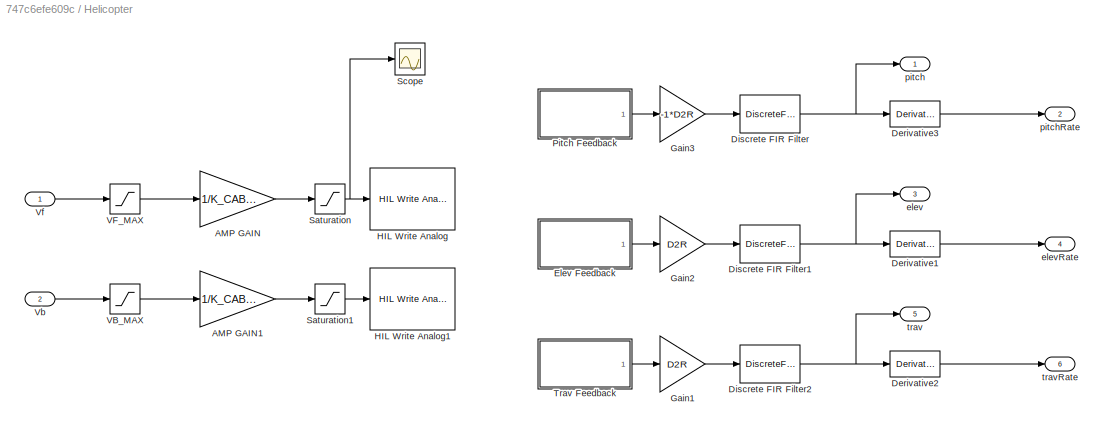
BLOCK [SubSystem] Helicopter
  Ports = [2, 6]
  RequestExecContextInheritance = off
  Variant = off
BLOCK [Scope] Helicopter Angles
  Floating = on
  Ports = []
  ScopeSpecificationString = Simulink.scopes.TimeScopeBlockCfg('CurrentConfiguration', extmgr.ConfigurationSet(extmgr.Configuration('Core','General UI',true),extmgr.Configuration('Core','Source UI',true),extmgr.Configuration('Sources','WiredSimulink',true),extmgr.Configuration('Visuals','Time Domain',true,'SerializedDisplays',{struct('MinYLimReal','-0.14519','MaxYLimReal','0.90218','YLabelReal','','MinYLimMag','0.00000','MaxY...<+1375ch>
BLOCK [Gain] Helicopter/AMP GAIN
  Gain = 1/K_CABLE
  OutDataTypeStr = Inherit: Inherit via internal rule
  ParamDataTypeStr = Inherit: Inherit via internal rule
  SaturateOnIntegerOverflow = off
BLOCK [Gain] Helicopter/AMP GAIN1
  Gain = 1/K_CABLE
  OutDataTypeStr = Inherit: Inherit via internal rule
  ParamDataTypeStr = Inherit: Inherit via internal rule
  SaturateOnIntegerOverflow = off
BLOCK [Derivative] Helicopter/Derivative1
BLOCK [Derivative] Helicopter/Derivative2
BLOCK [Derivative] Helicopter/Derivative3
BLOCK [DiscreteFir] Helicopter/Discrete FIR Filter
  Coefficients = filterCoeffs
  InputPortMap = u0
  OutputPortMap = o0
  Ports = [1, 1]
BLOCK [DiscreteFir] Helicopter/Discrete FIR Filter1
  Coefficients = filterCoeffs
  InputPortMap = u0
  OutputPortMap = o0
  Ports = [1, 1]
BLOCK [DiscreteFir] Helicopter/Discrete FIR Filter2
  Coefficients = filterCoeffs
  InputPortMap = u0
  OutputPortMap = o0
  Ports = [1, 1]
BLOCK [SubSystem] Helicopter/Elev Feedback
  Ports = [0, 1]
  RequestExecContextInheritance = off
  Variant = off
BLOCK [Bias] Helicopter/Elev Feedback/Bias
  SaturateOnIntegerOverflow = off
BLOCK [Gain] Helicopter/Elev Feedback/Count2Degree
  Gain = KE_C2D
  OutDataTypeStr = Inherit: Inherit via internal rule
  ParamDataTypeStr = Inherit: Inherit via internal rule
  SaturateOnIntegerOverflow = off
BLOCK [Outport] Helicopter/Elev Feedback/Elev [deg]
  IconDisplay = Port number
BLOCK [Reference] Helicopter/Elev Feedback/HIL Read Encoder  REF=quarc_library/Data Acquisition/Generic/Immediate I//O/HIL Read Encoder
  AttributesFormatString = (%<object_name>)
  Ports = [0, 1]
  SourceBlock = quarc_library/Data Acquisition/Generic/Immediate I//O/HIL Read Encoder
  SourceType = HIL Read Encoder
  UserDataPersistent = on
BLOCK [Gain] Helicopter/Gain1
  Gain = D2R
  OutDataTypeStr = Inherit: Inherit via internal rule
  ParamDataTypeStr = Inherit: Inherit via internal rule
  SaturateOnIntegerOverflow = off
BLOCK [Gain] Helicopter/Gain2
  Gain = D2R
  OutDataTypeStr = Inherit: Inherit via internal rule
  ParamDataTypeStr = Inherit: Inherit via internal rule
  SaturateOnIntegerOverflow = off
BLOCK [Gain] Helicopter/Gain3
  Gain = -1*D2R
  OutDataTypeStr = Inherit: Inherit via internal rule
  ParamDataTypeStr = Inherit: Inherit via internal rule
  SaturateOnIntegerOverflow = off
BLOCK [Reference] Helicopter/HIL Write Analog  REF=quarc_library/Data Acquisition/Generic/Immediate I//O/HIL Write Analog
  AttributesFormatString = (%<object_name>)
  Ports = [1]
  SourceBlock = quarc_library/Data Acquisition/Generic/Immediate I//O/HIL Write Analog
  SourceType = HIL Write Analog
  UserDataPersistent = on
BLOCK [Reference] Helicopter/HIL Write Analog1  REF=quarc_library/Data Acquisition/Generic/Immediate I//O/HIL Write Analog
  AttributesFormatString = (%<object_name>)
  Ports = [1]
  SourceBlock = quarc_library/Data Acquisition/Generic/Immediate I//O/HIL Write Analog
  SourceType = HIL Write Analog
  UserDataPersistent = on
BLOCK [SubSystem] Helicopter/Pitch Feedback
  Ports = [0, 1]
  RequestExecContextInheritance = off
  Variant = off
BLOCK [Bias] Helicopter/Pitch Feedback/Bias
  SaturateOnIntegerOverflow = off
BLOCK [Gain] Helicopter/Pitch Feedback/Count2Degree
  Gain = KE_C2D*0.5
  OutDataTypeStr = Inherit: Inherit via internal rule
  ParamDataTypeStr = Inherit: Inherit via internal rule
  SaturateOnIntegerOverflow = off
BLOCK [Reference] Helicopter/Pitch Feedback/HIL Read Encoder  REF=quarc_library/Data Acquisition/Generic/Immediate I//O/HIL Read Encoder
  AttributesFormatString = (%<object_name>)
  Ports = [0, 1]
  SourceBlock = quarc_library/Data Acquisition/Generic/Immediate I//O/HIL Read Encoder
  SourceType = HIL Read Encoder
  UserDataPersistent = on
BLOCK [Outport] Helicopter/Pitch Feedback/Pitch [deg]
  IconDisplay = Port number
BLOCK [Saturate] Helicopter/Saturation
  InputPortMap = u0
  LowerLimit = -K_DAQ*0.5
  Ports = [1, 1]
  UpperLimit = K_DAQ*0.5
BLOCK [Saturate] Helicopter/Saturation1
  InputPortMap = u0
  LowerLimit = -K_DAQ*0.5
  Ports = [1, 1]
  UpperLimit = K_DAQ*0.5
BLOCK [Scope] Helicopter/Scope
  Ports = [1]
  ScopeSpecificationString = Simulink.scopes.TimeScopeBlockCfg('CurrentConfiguration', extmgr.ConfigurationSet(extmgr.Configuration('Core','General UI',true),extmgr.Configuration('Core','Source UI',true),extmgr.Configuration('Sources','WiredSimulink',true,'DataLoggingVariableName','ScopeData1'),extmgr.Configuration('Visuals','Time Domain',true,'SerializedDisplays',{struct('MinYLimReal','1.70431','MaxYLimReal','3.20855','YLabe...<+1396ch>
BLOCK [SubSystem] Helicopter/Trav Feedback
  Ports = [0, 1]
  RequestExecContextInheritance = off
  Variant = off
BLOCK [Bias] Helicopter/Trav Feedback/Bias
  SaturateOnIntegerOverflow = off
BLOCK [Gain] Helicopter/Trav Feedback/Count2Degree
  Gain = KE_C2D*0.5
  OutDataTypeStr = Inherit: Inherit via internal rule
  ParamDataTypeStr = Inherit: Inherit via internal rule
  SaturateOnIntegerOverflow = off
BLOCK [Reference] Helicopter/Trav Feedback/HIL Read Encoder  REF=quarc_library/Data Acquisition/Generic/Immediate I//O/HIL Read Encoder
  AttributesFormatString = (%<object_name>)
  Ports = [0, 1]
  SourceBlock = quarc_library/Data Acquisition/Generic/Immediate I//O/HIL Read Encoder
  SourceType = HIL Read Encoder
  UserDataPersistent = on
BLOCK [Outport] Helicopter/Trav Feedback/Trav [deg]
  IconDisplay = Port number
BLOCK [Saturate] Helicopter/VB_MAX
  InputPortMap = u0
  LowerLimit = -VSUM_MAX*0.5
  Ports = [1, 1]
  UpperLimit = VSUM_MAX*0.5
BLOCK [Saturate] Helicopter/VF_MAX
  InputPortMap = u0
  LinearizeAsGain = off
  LowerLimit = -VSUM_MAX*0.5
  Ports = [1, 1]
  UpperLimit = VSUM_MAX*0.5
BLOCK [Inport] Helicopter/Vb
  IconDisplay = Port number
  Port = 2
BLOCK [Inport] Helicopter/Vf
  IconDisplay = Port number
BLOCK [Outport] Helicopter/elev
  IconDisplay = Port number
  Port = 3
BLOCK [Outport] Helicopter/elevRate
  IconDisplay = Port number
  Port = 4
BLOCK [Outport] Helicopter/pitch
  IconDisplay = Port number
BLOCK [Outport] Helicopter/pitchRate
  IconDisplay = Port number
  Port = 2
BLOCK [Outport] Helicopter/trav
  IconDisplay = Port number
  Port = 5
BLOCK [Outport] Helicopter/travRate
  IconDisplay = Port number
  Port = 6
BLOCK [Display] Net Force
  Decimation = 2
  Ports = [1]
BLOCK [SubSystem] Net Force Override
  DialogController = hmiCreateDDGDialog
  IsWebBlock = on
  MaskHideContents = on
  Ports = []
  RequestExecContextInheritance = off
  Variant = off
BLOCK [SubSystem] Net Force Slider
  DialogController = hmiCreateDDGDialog
  IsWebBlock = on
  MaskHideContents = on
  Ports = []
  RequestExecContextInheritance = off
  Variant = off
BLOCK [Display] Pitch
  Decimation = 2
  Ports = [1]
BLOCK [Display] Travel
  Decimation = 2
  Ports = [1]
BLOCK [SubSystem] Travel Slider
  DialogController = hmiCreateDDGDialog
  IsWebBlock = on
  MaskHideContents = on
  Ports = []
  RequestExecContextInheritance = off
  Variant = off
BLOCK [SubSystem] Tune Elev
  DialogController = hmiCreateDDGDialog
  IsWebBlock = on
  MaskHideContents = on
  Ports = []
  RequestExecContextInheritance = off
  Variant = off
BLOCK [SubSystem] Tune Elev Rate
  DialogController = hmiCreateDDGDialog
  IsWebBlock = on
  MaskHideContents = on
  Ports = []
  RequestExecContextInheritance = off
  Variant = off
BLOCK [SubSystem] Tune Pitch
  DialogController = hmiCreateDDGDialog
  IsWebBlock = on
  MaskHideContents = on
  Ports = []
  RequestExecContextInheritance = off
  Variant = off
BLOCK [SubSystem] Tune Trav
  DialogController = hmiCreateDDGDialog
  IsWebBlock = on
  MaskHideContents = on
  Ports = []
  RequestExecContextInheritance = off
  Variant = off
BLOCK [SubSystem] Tune Trav Rate
  DialogController = hmiCreateDDGDialog
  IsWebBlock = on
  MaskHideContents = on
  Ports = []
  RequestExecContextInheritance = off
  Variant = off
BLOCK [Display] Vb
  Decimation = 2
  Ports = [1]
BLOCK [Display] Vf
  Decimation = 2
  Ports = [1]
BLOCK [SubSystem] deltaF Override
  Ports = [1, 1]
  RequestExecContextInheritance = off
  Variant = off
BLOCK [SubSystem] deltaF Override/Tune Selector
  Ports = [2, 1]
  RequestExecContextInheritance = off
  Variant = off
BLOCK [MultiPortSwitch] deltaF Override/Tune Selector/Multiport Switch
  DataPortOrder = Zero-based contiguous
  InputSameDT = off
  Inputs = 2
  Ports = [3, 1]
  SaturateOnIntegerOverflow = off
BLOCK [Inport] deltaF Override/Tune Selector/defaultRef
  IconDisplay = Port number
  Port = 2
BLOCK [Constant] deltaF Override/Tune Selector/deltaF
  Value = 0
BLOCK [Outport] deltaF Override/Tune Selector/output 
  IconDisplay = Port number
BLOCK [Inport] deltaF Override/Tune Selector/tuneRef
  IconDisplay = Port number
BLOCK [Inport] deltaF Override/input
  IconDisplay = Port number
BLOCK [Outport] deltaF Override/output
  IconDisplay = Port number
BLOCK [Constant] deltaF Override/tuneRef
  Value = 0.991
BLOCK [Constant] elevRef
  Value = 25
BLOCK [SubSystem] netF Override
  Ports = [1, 1]
  RequestExecContextInheritance = off
  Variant = off
BLOCK [SubSystem] netF Override/Tune Selector
  Ports = [2, 1]
  RequestExecContextInheritance = off
  Variant = off
BLOCK [MultiPortSwitch] netF Override/Tune Selector/Multiport Switch
  DataPortIndices = {1,2}
  DataPortOrder = Zero-based contiguous
  InputSameDT = off
  Inputs = 2
  Ports = [3, 1]
  SaturateOnIntegerOverflow = off
BLOCK [Inport] netF Override/Tune Selector/defaultRef
  IconDisplay = Port number
  Port = 2
BLOCK [Constant] netF Override/Tune Selector/netF
  Value = 0
BLOCK [Outport] netF Override/Tune Selector/output 
  IconDisplay = Port number
BLOCK [Inport] netF Override/Tune Selector/tuneRef
  IconDisplay = Port number
BLOCK [Inport] netF Override/input
  IconDisplay = Port number
BLOCK [Outport] netF Override/output
  IconDisplay = Port number
BLOCK [Constant] netF Override/tuneRef
  Value = 0.6000188679245283
BLOCK [Constant] travRef
  Value = 144
LINE Controller/Elev Control/Elev Rate Tuning/Step:1 -> Controller/Elev Control/Elev Rate Tuning/Tune Selector:1
LINE Controller/Elev Control/Elev Rate Tuning/Tune Selector/Multiport Switch:1 -> Controller/Elev Control/Elev Rate Tuning/Tune Selector/output :1
LINE Controller/Elev Control/Elev Rate Tuning/Tune Selector/defaultRef:1 -> Controller/Elev Control/Elev Rate Tuning/Tune Selector/Multiport Switch:2
LINE Controller/Elev Control/Elev Rate Tuning/Tune Selector/elevRate:1 -> Controller/Elev Control/Elev Rate Tuning/Tune Selector/Multiport Switch:1
LINE Controller/Elev Control/Elev Rate Tuning/Tune Selector/tuneRef:1 -> Controller/Elev Control/Elev Rate Tuning/Tune Selector/Multiport Switch:3
LINE Controller/Elev Control/Elev Rate Tuning/Tune Selector:1 -> Controller/Elev Control/Elev Rate Tuning/output:1
LINE Controller/Elev Control/Elev Rate Tuning/input:1 -> Controller/Elev Control/Elev Rate Tuning/Tune Selector:2
NET Controller/Elev Control/Elev Rate Tuning:1 -> Controller/Elev Control/Elevation Rate:1, Controller/Elev Control/Mux1:3, Controller/Elev Control/Mux:1
LINE Controller/Elev Control/Elev Tuning/Step:1 -> Controller/Elev Control/Elev Tuning/Tune Selector:1
LINE Controller/Elev Control/Elev Tuning/Tune Selector/Multiport Switch:1 -> Controller/Elev Control/Elev Tuning/Tune Selector/output :1
LINE Controller/Elev Control/Elev Tuning/Tune Selector/defaultRef:1 -> Controller/Elev Control/Elev Tuning/Tune Selector/Multiport Switch:2
LINE Controller/Elev Control/Elev Tuning/Tune Selector/elev:1 -> Controller/Elev Control/Elev Tuning/Tune Selector/Multiport Switch:1
LINE Controller/Elev Control/Elev Tuning/Tune Selector/tuneRef:1 -> Controller/Elev Control/Elev Tuning/Tune Selector/Multiport Switch:3
LINE Controller/Elev Control/Elev Tuning/Tune Selector:1 -> Controller/Elev Control/Elev Tuning/output:1
LINE Controller/Elev Control/Elev Tuning/input:1 -> Controller/Elev Control/Elev Tuning/Tune Selector:2
NET Controller/Elev Control/Elev Tuning:1 -> Controller/Elev Control/Elevation:1, Controller/Elev Control/Mux1:1
LINE Controller/Elev Control/Elevation Rate/Add:1 -> Controller/Elev Control/Elevation Rate/Saturation:1
LINE Controller/Elev Control/Elevation Rate/Derivative:1 -> Controller/Elev Control/Elevation Rate/Add:3
NET Controller/Elev Control/Elevation Rate/Discrete-Time Integrator:1 -> Controller/Elev Control/Elevation Rate/Add:2, Controller/Elev Control/Elevation Rate/Integrator Scope:1
LINE Controller/Elev Control/Elevation Rate/Kd:1 -> Controller/Elev Control/Elevation Rate/Derivative:1
LINE Controller/Elev Control/Elevation Rate/Ki:1 -> Controller/Elev Control/Elevation Rate/Discrete-Time Integrator:1
LINE Controller/Elev Control/Elevation Rate/Kp:1 -> Controller/Elev Control/Elevation Rate/Add:1
LINE Controller/Elev Control/Elevation Rate/Saturation:1 -> Controller/Elev Control/Elevation Rate/output:1
NET Controller/Elev Control/Elevation Rate/Sum:1 -> Controller/Elev Control/Elevation Rate/Ki:1, Controller/Elev Control/Elevation Rate/Kp:1
NET Controller/Elev Control/Elevation Rate/actual:1 -> Controller/Elev Control/Elevation Rate/Kd:1, Controller/Elev Control/Elevation Rate/Sum:2
LINE Controller/Elev Control/Elevation Rate/target:1 -> Controller/Elev Control/Elevation Rate/Sum:1
NET Controller/Elev Control/Elevation Rate:1 -> Controller/Elev Control/Mux:3, Controller/Elev Control/elevForceOut:1
LINE Controller/Elev Control/Elevation/Add:1 -> Controller/Elev Control/Elevation/Saturation:1
LINE Controller/Elev Control/Elevation/Derivative:1 -> Controller/Elev Control/Elevation/Add:3
LINE Controller/Elev Control/Elevation/Discrete-Time Integrator:1 -> Controller/Elev Control/Elevation/Add:2
LINE Controller/Elev Control/Elevation/Kd:1 -> Controller/Elev Control/Elevation/Derivative:1
LINE Controller/Elev Control/Elevation/Ki:1 -> Controller/Elev Control/Elevation/Discrete-Time Integrator:1
LINE Controller/Elev Control/Elevation/Kp:1 -> Controller/Elev Control/Elevation/Add:1
NET Controller/Elev Control/Elevation/Radial Error:1 -> Controller/Elev Control/Elevation/Ki:1, Controller/Elev Control/Elevation/Kp:1
LINE Controller/Elev Control/Elevation/Saturation:1 -> Controller/Elev Control/Elevation/output:1
NET Controller/Elev Control/Elevation/actual:1 -> Controller/Elev Control/Elevation/Kd:1, Controller/Elev Control/Elevation/Radial Error:2
LINE Controller/Elev Control/Elevation/target:1 -> Controller/Elev Control/Elevation/Radial Error:1
LINE Controller/Elev Control/Elevation:1 -> Controller/Elev Control/Elev Rate Tuning:1
LINE Controller/Elev Control/Mux1:1 -> Controller/Elev Control/Elev Scope:1
LINE Controller/Elev Control/Mux:1 -> Controller/Elev Control/Elev Rate Scope:1
NET Controller/Elev Control/elevIn:1 -> Controller/Elev Control/Elevation:2, Controller/Elev Control/Mux1:2
NET Controller/Elev Control/elevRateIn:1 -> Controller/Elev Control/Elevation Rate:2, Controller/Elev Control/Mux:2
LINE Controller/Elev Control/elevRefIn:1 -> Controller/Elev Control/Elev Tuning:1
LINE Controller/Elev Control:1 -> Controller/Feed Forward Comp:2
LINE Controller/Feed Forward Comp/Combined Saturation:1 -> Controller/Feed Forward Comp/elevForceComp:1
LINE Controller/Feed Forward Comp/Compensator Calc:1 -> Controller/Feed Forward Comp/Combined Saturation:1
LINE Controller/Feed Forward Comp/a:1 -> Controller/Feed Forward Comp/Compensator Calc:1
LINE Controller/Feed Forward Comp/b:1 -> Controller/Feed Forward Comp/Compensator Calc:2
LINE Controller/Feed Forward Comp/c:1 -> Controller/Feed Forward Comp/Compensator Calc:3
LINE Controller/Feed Forward Comp/elev:1 -> Controller/Feed Forward Comp/Compensator Calc:4
LINE Controller/Feed Forward Comp/elevForce:1 -> Controller/Feed Forward Comp/Compensator Calc:5
NET Controller/Feed Forward Comp:1 -> Controller/Pitch Calc:1, Controller/netF Calc:1
LINE Controller/Pitch Calc:1 -> Controller/Pitch Control:1
LINE Controller/Pitch Control/Mux:1 -> Controller/Pitch Control/Pitch Rate Scope:1
LINE Controller/Pitch Control/Pitch Tuning/Step:1 -> Controller/Pitch Control/Pitch Tuning/Tune Selector:1
LINE Controller/Pitch Control/Pitch Tuning/Tune Selector/Multiport Switch:1 -> Controller/Pitch Control/Pitch Tuning/Tune Selector/output :1
LINE Controller/Pitch Control/Pitch Tuning/Tune Selector/defaultRef:1 -> Controller/Pitch Control/Pitch Tuning/Tune Selector/Multiport Switch:2
LINE Controller/Pitch Control/Pitch Tuning/Tune Selector/pitchRate:1 -> Controller/Pitch Control/Pitch Tuning/Tune Selector/Multiport Switch:1
LINE Controller/Pitch Control/Pitch Tuning/Tune Selector/tuneRef:1 -> Controller/Pitch Control/Pitch Tuning/Tune Selector/Multiport Switch:3
LINE Controller/Pitch Control/Pitch Tuning/Tune Selector:1 -> Controller/Pitch Control/Pitch Tuning/output:1
LINE Controller/Pitch Control/Pitch Tuning/input:1 -> Controller/Pitch Control/Pitch Tuning/Tune Selector:2
NET Controller/Pitch Control/Pitch Tuning:1 -> Controller/Pitch Control/Mux:1, Controller/Pitch Control/Pitch:1
LINE Controller/Pitch Control/Pitch/Add:1 -> Controller/Pitch Control/Pitch/Saturation:1
LINE Controller/Pitch Control/Pitch/Derivative:1 -> Controller/Pitch Control/Pitch/Add:3
NET Controller/Pitch Control/Pitch/Discrete-Time Integrator:1 -> Controller/Pitch Control/Pitch/Add:2, Controller/Pitch Control/Pitch/Scope:1
LINE Controller/Pitch Control/Pitch/Kd:1 -> Controller/Pitch Control/Pitch/Derivative:1
LINE Controller/Pitch Control/Pitch/Ki:1 -> Controller/Pitch Control/Pitch/Discrete-Time Integrator:1
LINE Controller/Pitch Control/Pitch/Kp:1 -> Controller/Pitch Control/Pitch/Add:1
LINE Controller/Pitch Control/Pitch/Saturation:1 -> Controller/Pitch Control/Pitch/output:1
NET Controller/Pitch Control/Pitch/Sum:1 -> Controller/Pitch Control/Pitch/Ki:1, Controller/Pitch Control/Pitch/Kp:1
NET Controller/Pitch Control/Pitch/actual:1 -> Controller/Pitch Control/Pitch/Kd:1, Controller/Pitch Control/Pitch/Sum:2
LINE Controller/Pitch Control/Pitch/target:1 -> Controller/Pitch Control/Pitch/Sum:1
NET Controller/Pitch Control/Pitch:1 -> Controller/Pitch Control/Mux:3, Controller/Pitch Control/deltaFOut:1
NET Controller/Pitch Control/pitchIn:1 -> Controller/Pitch Control/Mux:2, Controller/Pitch Control/Pitch:2
LINE Controller/Pitch Control/pitchRefIn:1 -> Controller/Pitch Control/Pitch Tuning:1
LINE Controller/Pitch Control:1 -> Controller/deltaF:1
LINE Controller/Trav Control/Mux1:1 -> Controller/Trav Control/Trav Scope:1
LINE Controller/Trav Control/Mux:1 -> Controller/Trav Control/Trav Rate Scope:1
LINE Controller/Trav Control/Trav Rate Tuning/Step:1 -> Controller/Trav Control/Trav Rate Tuning/Tune Selector:1
LINE Controller/Trav Control/Trav Rate Tuning/Tune Selector/Multiport Switch:1 -> Controller/Trav Control/Trav Rate Tuning/Tune Selector/output :1
LINE Controller/Trav Control/Trav Rate Tuning/Tune Selector/defaultRef:1 -> Controller/Trav Control/Trav Rate Tuning/Tune Selector/Multiport Switch:2
LINE Controller/Trav Control/Trav Rate Tuning/Tune Selector/travRate:1 -> Controller/Trav Control/Trav Rate Tuning/Tune Selector/Multiport Switch:1
LINE Controller/Trav Control/Trav Rate Tuning/Tune Selector/tuneRef:1 -> Controller/Trav Control/Trav Rate Tuning/Tune Selector/Multiport Switch:3
LINE Controller/Trav Control/Trav Rate Tuning/Tune Selector:1 -> Controller/Trav Control/Trav Rate Tuning/output:1
LINE Controller/Trav Control/Trav Rate Tuning/input:1 -> Controller/Trav Control/Trav Rate Tuning/Tune Selector:2
NET Controller/Trav Control/Trav Rate Tuning:1 -> Controller/Trav Control/Mux1:3, Controller/Trav Control/Mux:1, Controller/Trav Control/Travel Rate:1
LINE Controller/Trav Control/Trav Tuning/Step:1 -> Controller/Trav Control/Trav Tuning/Tune Selector:1
LINE Controller/Trav Control/Trav Tuning/Tune Selector/Multiport Switch:1 -> Controller/Trav Control/Trav Tuning/Tune Selector/output :1
LINE Controller/Trav Control/Trav Tuning/Tune Selector/defaultRef:1 -> Controller/Trav Control/Trav Tuning/Tune Selector/Multiport Switch:2
LINE Controller/Trav Control/Trav Tuning/Tune Selector/trav:1 -> Controller/Trav Control/Trav Tuning/Tune Selector/Multiport Switch:1
LINE Controller/Trav Control/Trav Tuning/Tune Selector/tuneRef:1 -> Controller/Trav Control/Trav Tuning/Tune Selector/Multiport Switch:3
LINE Controller/Trav Control/Trav Tuning/Tune Selector:1 -> Controller/Trav Control/Trav Tuning/output:1
LINE Controller/Trav Control/Trav Tuning/input:1 -> Controller/Trav Control/Trav Tuning/Tune Selector:2
NET Controller/Trav Control/Trav Tuning:1 -> Controller/Trav Control/Mux1:1, Controller/Trav Control/Travel:1
LINE Controller/Trav Control/Travel Rate/Add:1 -> Controller/Trav Control/Travel Rate/Saturation:1
LINE Controller/Trav Control/Travel Rate/Derivative:1 -> Controller/Trav Control/Travel Rate/Add:3
NET Controller/Trav Control/Travel Rate/Discrete-Time Integrator:1 -> Controller/Trav Control/Travel Rate/Add:2, Controller/Trav Control/Travel Rate/Scope:1
LINE Controller/Trav Control/Travel Rate/Kd:1 -> Controller/Trav Control/Travel Rate/Derivative:1
LINE Controller/Trav Control/Travel Rate/Ki:1 -> Controller/Trav Control/Travel Rate/Discrete-Time Integrator:1
LINE Controller/Trav Control/Travel Rate/Kp:1 -> Controller/Trav Control/Travel Rate/Add:1
LINE Controller/Trav Control/Travel Rate/Saturation:1 -> Controller/Trav Control/Travel Rate/output:1
NET Controller/Trav Control/Travel Rate/Sum:1 -> Controller/Trav Control/Travel Rate/Ki:1, Controller/Trav Control/Travel Rate/Kp:1
NET Controller/Trav Control/Travel Rate/actual:1 -> Controller/Trav Control/Travel Rate/Kd:1, Controller/Trav Control/Travel Rate/Sum:2
LINE Controller/Trav Control/Travel Rate/target:1 -> Controller/Trav Control/Travel Rate/Sum:1
NET Controller/Trav Control/Travel Rate:1 -> Controller/Trav Control/Mux:3, Controller/Trav Control/travForceOut:1
LINE Controller/Trav Control/Travel/Add:1 -> Controller/Trav Control/Travel/Saturation:1
LINE Controller/Trav Control/Travel/Derivative:1 -> Controller/Trav Control/Travel/Add:3
LINE Controller/Trav Control/Travel/Discrete-Time Integrator:1 -> Controller/Trav Control/Travel/Add:2
LINE Controller/Trav Control/Travel/Kd:1 -> Controller/Trav Control/Travel/Derivative:1
LINE Controller/Trav Control/Travel/Ki:1 -> Controller/Trav Control/Travel/Discrete-Time Integrator:1
LINE Controller/Trav Control/Travel/Kp:1 -> Controller/Trav Control/Travel/Add:1
NET Controller/Trav Control/Travel/Radial Error:1 -> Controller/Trav Control/Travel/Ki:1, Controller/Trav Control/Travel/Kp:1
LINE Controller/Trav Control/Travel/Saturation:1 -> Controller/Trav Control/Travel/output:1
NET Controller/Trav Control/Travel/actual:1 -> Controller/Trav Control/Travel/Kd:1, Controller/Trav Control/Travel/Radial Error:2
LINE Controller/Trav Control/Travel/target:1 -> Controller/Trav Control/Travel/Radial Error:1
LINE Controller/Trav Control/Travel:1 -> Controller/Trav Control/Trav Rate Tuning:1
NET Controller/Trav Control/travIn:1 -> Controller/Trav Control/Mux1:2, Controller/Trav Control/Travel:2
NET Controller/Trav Control/travRateIn:1 -> Controller/Trav Control/Mux:2, Controller/Trav Control/Travel Rate:2
LINE Controller/Trav Control/travRefIn:1 -> Controller/Trav Control/Trav Tuning:1
NET Controller/Trav Control:1 -> Controller/Pitch Calc:2, Controller/netF Calc:2
NET Controller/elev:1 -> Controller/Elev Control:2, Controller/Feed Forward Comp:1
LINE Controller/elevRate:1 -> Controller/Elev Control:3
LINE Controller/elevRef:1 -> Controller/Elev Control:1
LINE Controller/netF Calc:1 -> Controller/netF:1
NET Controller/pitch:1 -> Controller/Pitch Control:2, Controller/netF Calc:3
LINE Controller/trav:1 -> Controller/Trav Control:2
LINE Controller/travRate:1 -> Controller/Trav Control:3
LINE Controller/travRef:1 -> Controller/Trav Control:1
LINE Controller:1 -> deltaF Override:1
LINE Controller:2 -> netF Override:1
LINE Degrees to Radians1:1 -> Controller:2
LINE Degrees to Radians:1 -> Controller:1
LINE Force to Volts/Constant1:1 -> Force to Volts/Force to Vf:1
LINE Force to Volts/Constant2:1 -> Force to Volts/Force to Vf:2
LINE Force to Volts/Constant:1 -> Force to Volts/Force Mixer:1
NET Force to Volts/Force Mixer:1 -> Force to Volts/Force to Vf:3, Force to Volts/Mux:1
NET Force to Volts/Force Mixer:2 -> Force to Volts/Force to Vf:4, Force to Volts/Mux:2
LINE Force to Volts/Force to Vf:1 -> Force to Volts/Vf:1
LINE Force to Volts/Force to Vf:2 -> Force to Volts/Vb:1
LINE Force to Volts/Mux:1 -> Force to Volts/Scope:1
LINE Force to Volts/deltaF:1 -> Force to Volts/Force Mixer:2
LINE Force to Volts/netF:1 -> Force to Volts/Force Mixer:3
NET Force to Volts:1 -> Helicopter:1, Vf:1
NET Force to Volts:2 -> Helicopter:2, Vb:1
LINE Helicopter/AMP GAIN1:1 -> Helicopter/Saturation1:1
LINE Helicopter/AMP GAIN:1 -> Helicopter/Saturation:1
LINE Helicopter/Derivative1:1 -> Helicopter/elevRate:1
LINE Helicopter/Derivative2:1 -> Helicopter/travRate:1
LINE Helicopter/Derivative3:1 -> Helicopter/pitchRate:1
NET Helicopter/Discrete FIR Filter1:1 -> Helicopter/Derivative1:1, Helicopter/elev:1
NET Helicopter/Discrete FIR Filter2:1 -> Helicopter/Derivative2:1, Helicopter/trav:1
NET Helicopter/Discrete FIR Filter:1 -> Helicopter/Derivative3:1, Helicopter/pitch:1
LINE Helicopter/Elev Feedback/Bias:1 -> Helicopter/Elev Feedback/Elev [deg]:1
LINE Helicopter/Elev Feedback/Count2Degree:1 -> Helicopter/Elev Feedback/Bias:1
LINE Helicopter/Elev Feedback/HIL Read Encoder:1 -> Helicopter/Elev Feedback/Count2Degree:1
LINE Helicopter/Elev Feedback:1 -> Helicopter/Gain2:1
LINE Helicopter/Gain1:1 -> Helicopter/Discrete FIR Filter2:1
LINE Helicopter/Gain2:1 -> Helicopter/Discrete FIR Filter1:1
LINE Helicopter/Gain3:1 -> Helicopter/Discrete FIR Filter:1
LINE Helicopter/Pitch Feedback/Bias:1 -> Helicopter/Pitch Feedback/Pitch [deg]:1
LINE Helicopter/Pitch Feedback/Count2Degree:1 -> Helicopter/Pitch Feedback/Bias:1
LINE Helicopter/Pitch Feedback/HIL Read Encoder:1 -> Helicopter/Pitch Feedback/Count2Degree:1
LINE Helicopter/Pitch Feedback:1 -> Helicopter/Gain3:1
LINE Helicopter/Saturation1:1 -> Helicopter/HIL Write Analog1:1
NET Helicopter/Saturation:1 -> Helicopter/HIL Write Analog:1, Helicopter/Scope:1
LINE Helicopter/Trav Feedback/Bias:1 -> Helicopter/Trav Feedback/Trav [deg]:1
LINE Helicopter/Trav Feedback/Count2Degree:1 -> Helicopter/Trav Feedback/Bias:1
LINE Helicopter/Trav Feedback/HIL Read Encoder:1 -> Helicopter/Trav Feedback/Count2Degree:1
LINE Helicopter/Trav Feedback:1 -> Helicopter/Gain1:1
LINE Helicopter/VB_MAX:1 -> Helicopter/AMP GAIN1:1
LINE Helicopter/VF_MAX:1 -> Helicopter/AMP GAIN:1
LINE Helicopter/Vb:1 -> Helicopter/VB_MAX:1
LINE Helicopter/Vf:1 -> Helicopter/VF_MAX:1
NET Helicopter:1 -> Controller:3, Pitch:1
NET Helicopter:3 -> Controller:4, Elevation:1
LINE Helicopter:4 -> Controller:5
NET Helicopter:5 -> Controller:6, Travel:1
LINE Helicopter:6 -> Controller:7
LINE deltaF Override/Tune Selector/Multiport Switch:1 -> deltaF Override/Tune Selector/output :1
LINE deltaF Override/Tune Selector/defaultRef:1 -> deltaF Override/Tune Selector/Multiport Switch:2
LINE deltaF Override/Tune Selector/deltaF:1 -> deltaF Override/Tune Selector/Multiport Switch:1
LINE deltaF Override/Tune Selector/tuneRef:1 -> deltaF Override/Tune Selector/Multiport Switch:3
LINE deltaF Override/Tune Selector:1 -> deltaF Override/output:1
LINE deltaF Override/input:1 -> deltaF Override/Tune Selector:2
LINE deltaF Override/tuneRef:1 -> deltaF Override/Tune Selector:1
NET deltaF Override:1 -> Delta Force:1, Force to Volts:1
LINE elevRef:1 -> Degrees to Radians:1
LINE netF Override/Tune Selector/Multiport Switch:1 -> netF Override/Tune Selector/output :1
LINE netF Override/Tune Selector/defaultRef:1 -> netF Override/Tune Selector/Multiport Switch:2
LINE netF Override/Tune Selector/netF:1 -> netF Override/Tune Selector/Multiport Switch:1
LINE netF Override/Tune Selector/tuneRef:1 -> netF Override/Tune Selector/Multiport Switch:3
LINE netF Override/Tune Selector:1 -> netF Override/output:1
LINE netF Override/input:1 -> netF Override/Tune Selector:2
LINE netF Override/tuneRef:1 -> netF Override/Tune Selector:1
NET netF Override:1 -> Force to Volts:2, Net Force:1
LINE travRef:1 -> Degrees to Radians1:1
note: NET lines group one-source signal fan-out (src -> all destinations, sorted); 1:1 wires keep LINE
CHART Force to Volts/Force Mixer states=1 transitions=1
  STATE_LABEL 'eML_blk_kernel()'
  STATE_LABEL 'SCRIPT:\nfunction [Ff, Fb] = forceMixer(maxF, deltaF, F)\n    % Combine net force with delta force. Net force is for both motors, and\n    % delta force is between both motors, thus divided by two.\n    Ff = (F + deltaF) /2;\n    Fb = (F - deltaF) /2;\n    \n    % Compute max force per motor\n    maxMotorF = maxF / 2;\n    \n    % Check if a force exceeds maxmimum allowable force\n    if Ff > maxMotorF\n     ...<+296ch>'
CHART Force to Volts/Force to Vf states=1 transitions=1
  STATE_LABEL 'eML_blk_kernel()'
  STATE_LABEL 'SCRIPT:\nfunction [Vf, Vb] = motorVoltages(a, b, Ff, Fb)\n    Vf = forceToVolt(a, b, Ff);\n    Vb = forceToVolt(a, b, Fb);\nend'
CHART Controller/Elev Control/Elevation/Radial Error states=1 transitions=1
  STATE_LABEL 'eML_blk_kernel()'
  STATE_LABEL 'SCRIPT:\nfunction error = fcn(target, actual)\n    % Find minimum angle between two angles\n    error = target - actual;\n    error = mod(error + pi, 2 * pi) - pi;\nend'
CHART Controller/netF Calc states=1 transitions=1
  STATE_LABEL 'eML_blk_kernel()'
  STATE_LABEL 'SCRIPT:\nfunction netF  = netForceCalc(elevForce, travForce, pitch)\n    if abs(pitch) >= pi / 2\n        % Avoid division by zero when pitch is 90 or -90\n        netF = abs(travForce);\n    else\n        netF = elevForce / cos(pitch);\n    end\nend'
CHART Controller/Pitch Calc states=1 transitions=1
  STATE_LABEL 'eML_blk_kernel()'
  STATE_LABEL 'SCRIPT:\nfunction pitch  = pitchAngleCalc(elevForce, travForce)    \n    % Compute pitch angle\n    pitch = atan2(travForce, elevForce);\nend'
CHART Controller/Trav Control/Travel/Radial Error states=1 transitions=1
  STATE_LABEL 'eML_blk_kernel()'
  STATE_LABEL 'SCRIPT:\nfunction error = fcn(target, actual)\n    % Find minimum angle between two angles\n    error = target - actual;\n    error = mod(error + pi, 2 * pi) - pi;\nend'
CHART Controller/Feed Forward Comp/Compensator Calc states=1 transitions=1
  STATE_LABEL 'eML_blk_kernel()'
  STATE_LABEL 'SCRIPT:\nfunction elevForceComp = feedForwardComp(a, b, c, elev, elevForce)\n    compForce = a*elev^2 + b*elev + c;\n    elevForceComp = elevForce + compForce;\nend'
